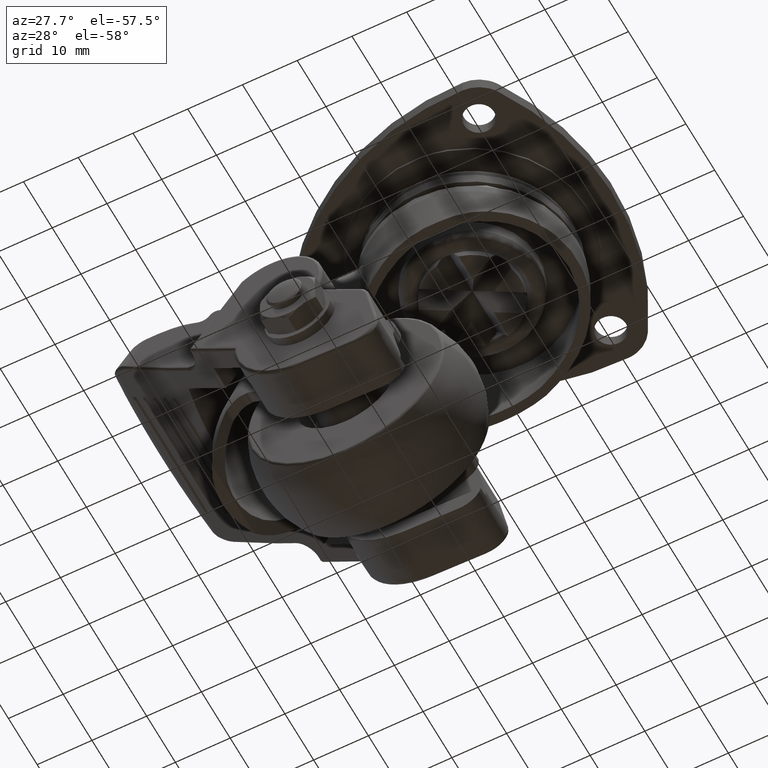
[diagram: clean part render]
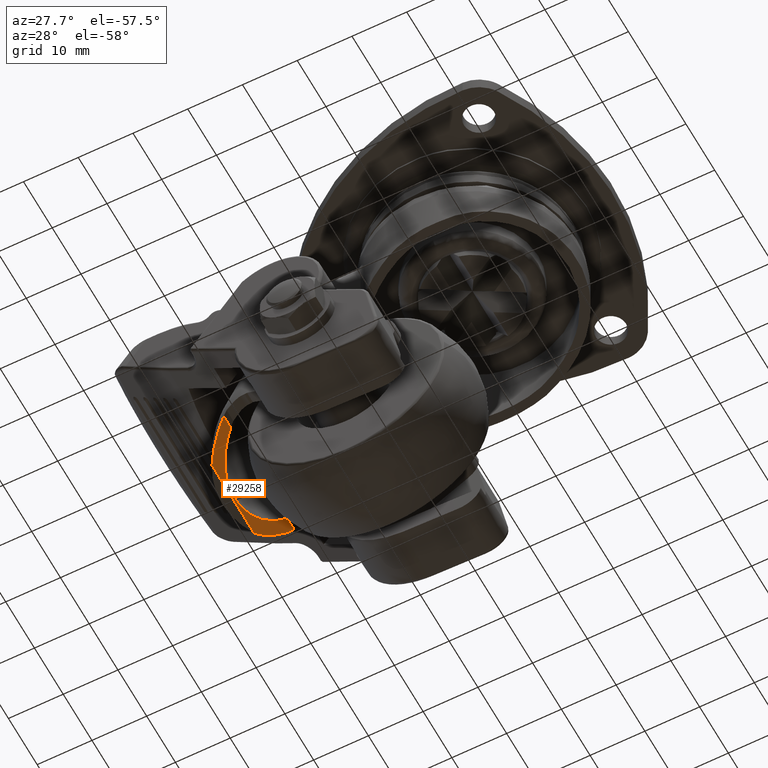
[diagram: same view with one face highlighted and labeled with its STEP entity id]
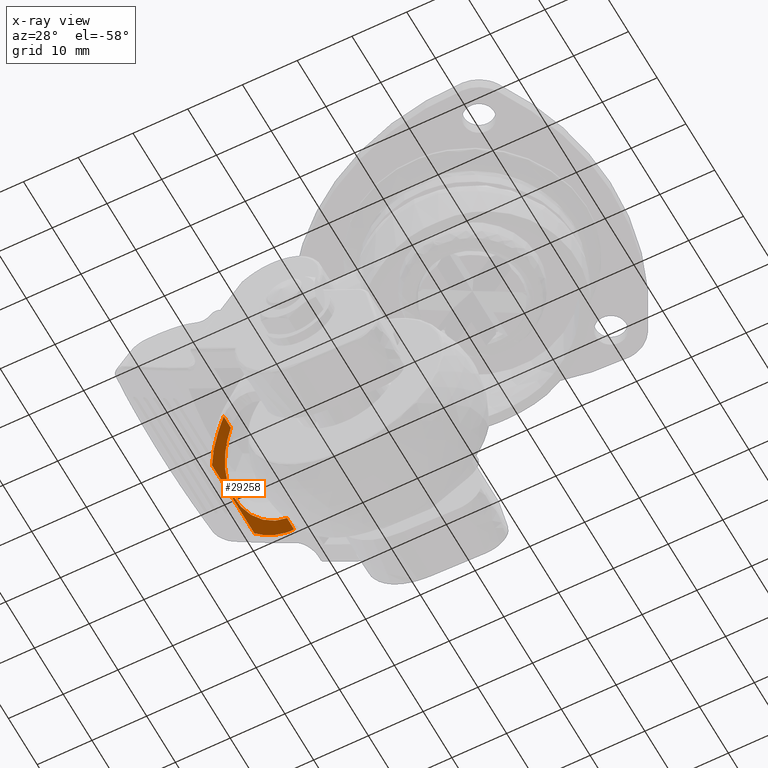
[diagram: x-ray of the same camera — body ghosted, the highlighted face saturated]
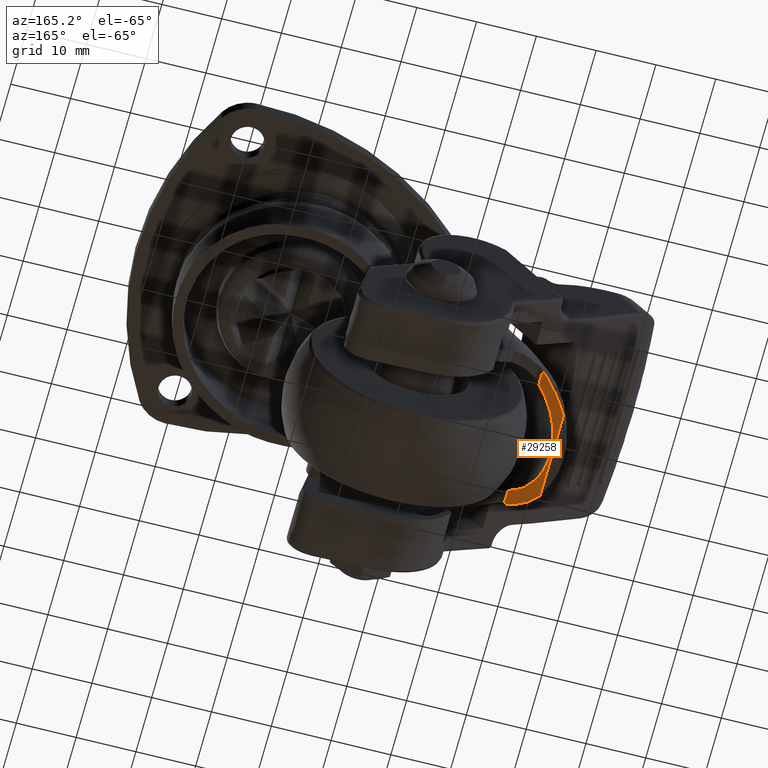
[diagram: same view with one face highlighted and labeled with its STEP entity id]
A machine part, auxiliary view. The second image highlights one B-rep face of the part: STEP entity #29258.
The next image is the same camera in x-ray: the body ghosted, the highlighted face saturated — about 0% of this face is hidden behind the body in this view.
A second angle (auxiliary view) of the same face is appended — the face is thin or edge-on in the first view.
In plain terms, the highlighted face is a freeform B-spline surface patch.
Its self-contained STEP definition (entity closure, byte-faithful):
#21800=CARTESIAN_POINT('',(-38.990632415442150,-9.787020269318219,-39.001695045220352));
#21801=VERTEX_POINT('',#21800);
#21811=CARTESIAN_POINT('',(-38.990630976671603,9.787021459366850,-39.001695959185149));
#21812=VERTEX_POINT('',#21811);
#21813=CARTESIAN_POINT('',(-38.990630976671603,9.787021459366850,-39.001695959185149));
#21814=CARTESIAN_POINT('',(-39.288993677966531,9.562006643564985,-39.355919401635319));
#21815=CARTESIAN_POINT('',(-39.583609206239743,9.311210438640156,-39.689070081056812));
#21816=CARTESIAN_POINT('',(-40.160260491850650,8.754972560939475,-40.315029654420663));
#21817=CARTESIAN_POINT('',(-40.442314747536592,8.449560925788552,-40.607849924627402));
#21818=CARTESIAN_POINT('',(-40.783548513886487,8.030974399839327,-40.949355357571051));
#21819=CARTESIAN_POINT('',(-40.851226488175890,7.945411582078039,-41.016428179176422));
#21820=CARTESIAN_POINT('',(-40.985347564712463,7.770506921104625,-41.148124163342047));
#21821=CARTESIAN_POINT('',(-41.051927173366039,7.680971755287967,-41.212878087348891));
#21822=CARTESIAN_POINT('',(-41.248427771846849,7.408282555905510,-41.402285793588021));
#21823=CARTESIAN_POINT('',(-41.375129631431307,7.221085885086739,-41.522121762224643));
#21824=CARTESIAN_POINT('',(-41.741784581498457,6.643514656175595,-41.863414714080093));
#21825=CARTESIAN_POINT('',(-41.968327098355161,6.237218012157707,-42.066734901682302));
#21826=CARTESIAN_POINT('',(-42.278517920884532,5.595828503154815,-42.338338510820762));
#21827=CARTESIAN_POINT('',(-42.376968863386352,5.376693809676836,-42.423290842407880));
#21828=CARTESIAN_POINT('',(-42.516773449211961,5.039831844461711,-42.542531512786361));
#21829=CARTESIAN_POINT('',(-42.562062138085572,4.926183444152608,-42.580912466219502));
#21830=CARTESIAN_POINT('',(-42.649926482853068,4.696124794978926,-42.654957044260001));
#21831=CARTESIAN_POINT('',(-42.692510309039157,4.579664154245539,-42.690626533065547));
#21832=CARTESIAN_POINT('',(-42.896771094144128,3.995277264738415,-42.860835427628693));
#21833=CARTESIAN_POINT('',(-43.034062784457078,3.517352537985829,-42.972388711513140));
#21834=CARTESIAN_POINT('',(-43.256124428224147,2.541449465855905,-43.150859046308632));
#21835=CARTESIAN_POINT('',(-43.340905382379937,2.043472500861859,-43.217770067142212));
#21836=CARTESIAN_POINT('',(-43.412390976105961,1.408175184641963,-43.273966938009622));
#21837=CARTESIAN_POINT('',(-43.424976487564557,1.280216576087910,-43.283839974339543));
#21838=CARTESIAN_POINT('',(-43.446502079105272,1.024438048815317,-43.300706400954383));
#21839=CARTESIAN_POINT('',(-43.455447497552129,0.896664021942407,-43.307704088448119));
#21840=CARTESIAN_POINT('',(-43.476902049783277,0.513682281884785,-43.324475531683532));
#21841=CARTESIAN_POINT('',(-43.484034965497287,0.258814443791981,-43.330035818415780));
#21842=CARTESIAN_POINT('',(-43.484278662286250,-0.504454425801323,-43.330225878569522));
#21843=CARTESIAN_POINT('',(-43.456316956866353,-1.011527898232405,-43.308490100568889));
#21844=CARTESIAN_POINT('',(-43.372073373449261,-1.769449775164073,-43.242275537882719));
#21845=CARTESIAN_POINT('',(-43.336921458814992,-2.021640589195433,-43.214571261848597));
#21846=CARTESIAN_POINT('',(-43.273378466315002,-2.399231570420937,-43.164164815028592));
#21847=CARTESIAN_POINT('',(-43.250447480143123,-2.524624434768511,-43.145927957021577));
#21848=CARTESIAN_POINT('',(-43.201359420648743,-2.773298891827075,-43.106753830216711));
#21849=CARTESIAN_POINT('',(-43.175172293642852,-2.896761925073797,-43.085792735761977));
#21850=CARTESIAN_POINT('',(-43.036182568029957,-3.509754695926981,-42.974109226266727));
#21851=CARTESIAN_POINT('',(-42.899305537422279,-3.986380655834871,-42.862890032348787));
#21852=CARTESIAN_POINT('',(-42.657432990640807,-4.680807921902177,-42.661422788633800));
#21853=CARTESIAN_POINT('',(-42.570698507010668,-4.908852531131845,-42.588466944878377));
#21854=CARTESIAN_POINT('',(-42.431533636830572,-5.245679609452610,-42.469853342979427));
#21855=CARTESIAN_POINT('',(-42.383633888967871,-5.357081235883142,-42.428783712096731));
#21856=CARTESIAN_POINT('',(-42.284817538373410,-5.578111506521057,-42.343478441474360));
#21857=CARTESIAN_POINT('',(-42.233790602035022,-5.687964449045004,-42.299145924312072));
#21858=CARTESIAN_POINT('',(-41.972657346841054,-6.229556584226855,-42.070628617639542));
#21859=CARTESIAN_POINT('',(-41.745111996104797,-6.637693031425621,-41.866421425246081));
#21860=CARTESIAN_POINT('',(-41.258113663921193,-7.405985274463511,-41.413285550832910));
#21861=CARTESIAN_POINT('',(-40.998633312842372,-7.766117373345595,-41.164347082343191));
#21862=CARTESIAN_POINT('',(-40.656970846196039,-8.186476705319631,-40.822734584419543));
#21863=CARTESIAN_POINT('',(-40.587771112800617,-8.269054390151451,-40.752885480653291));
#21864=CARTESIAN_POINT('',(-40.447698581193073,-8.431212098185984,-40.610053782201909));
#21865=CARTESIAN_POINT('',(-40.377036532001547,-8.510543390177034,-40.537284331404358));
#21866=CARTESIAN_POINT('',(-40.163964273763497,-8.742682167431546,-40.315568366273403));
#21867=CARTESIAN_POINT('',(-40.020199352419482,-8.889952083638297,-40.162940603212327));
#21868=CARTESIAN_POINT('',(-39.584821219891062,-9.310284397235941,-39.690480312099908));
#21869=CARTESIAN_POINT('',(-39.289136016345772,-9.561899147327074,-39.356085811793463));
#21870=CARTESIAN_POINT('',(-38.990632415442150,-9.787020269318219,-39.001695045220352));
#21871=B_SPLINE_CURVE_WITH_KNOTS('',3,(#21813,#21814,#21815,#21816,#21817,#21818,#21819,#21820,#21821,#21822,#21823,#21824,#21825,#21826,#21827,#21828,#21829,#21830,#21831,#21832,#21833,#21834,#21835,#21836,#21837,#21838,#21839,#21840,#21841,#21842,#21843,#21844,#21845,#21846,#21847,#21848,#21849,#21850,#21851,#21852,#21853,#21854,#21855,#21856,#21857,#21858,#21859,#21860,#21861,#21862,#21863,#21864,#21865,#21866,#21867,#21868,#21869,#21870),.UNSPECIFIED.,.F.,.U.,(4,2,2,2,2,2,2,2,2,2,2,2,2,2,2,2,2,2,2,2,2,2,2,2,2,2,2,2,4),(9.078716E-009,0.062499999999998,0.124999999999995,0.140624999999995,0.156249999999994,0.187499999999993,0.249999999999993,0.281249999999992,0.296874999999992,0.312499999999992,0.374999999999990,0.437499999999989,0.453124999999989,0.468749999999988,0.499999999999988,0.562499999999986,0.593749999999986,0.609374999999986,0.624999999999985,0.687499999999986,0.718749999999986,0.734374999999986,0.749999999999986,0.812499999999989,0.874999999999991,0.890624999999992,0.906249999999993,0.937499999999995,1.0),.UNSPECIFIED.);
#21872=EDGE_CURVE('',#21812,#21801,#21871,.T.);
#22602=CARTESIAN_POINT('',(-43.709543506826712,-7.366659395732890,-43.504274996629952));
#22603=VERTEX_POINT('',#22602);
#22620=CARTESIAN_POINT('',(-43.709543506826712,7.366659395732890,-43.504274996629952));
#22621=VERTEX_POINT('',#22620);
#22629=CARTESIAN_POINT('',(-43.709543506826712,7.366659395732890,-43.504274996629952));
#22630=CARTESIAN_POINT('',(-43.709543506826712,-7.366659395732890,-43.504274996629952));
#22631=QUASI_UNIFORM_CURVE('',1,(#22629,#22630),.UNSPECIFIED.,.F.,.U.);
#22632=EDGE_CURVE('',#22621,#22603,#22631,.T.);
#28518=CARTESIAN_POINT('',(-38.990632415452247,12.242027815838600,-39.001695045232353));
#28519=VERTEX_POINT('',#28518);
#28529=CARTESIAN_POINT('',(-43.709543506826712,7.366659395732890,-43.504274996629952));
#28530=CARTESIAN_POINT('',(-43.707017183980582,7.371031835306636,-43.502342272152369));
#28531=CARTESIAN_POINT('',(-43.705548539522603,7.376277017478562,-43.501218117187143));
#28532=CARTESIAN_POINT('',(-43.703018496050007,7.380645482363916,-43.499281276092113));
#28533=CARTESIAN_POINT('',(-43.700499883492647,7.384994210216173,-43.497353185782032));
#28534=CARTESIAN_POINT('',(-43.697982293110108,7.389336003876810,-43.495425245857000));
#28535=CARTESIAN_POINT('',(-43.695459984626901,7.393680768819083,-43.493493057226750));
#28536=CARTESIAN_POINT('',(-43.690417633871903,7.402366395074875,-43.489630415974339));
#28537=CARTESIAN_POINT('',(-43.685367783963727,7.411044293875376,-43.485759490625213));
#28538=CARTESIAN_POINT('',(-43.680310698081080,7.419714033291863,-43.481880456871522));
#28539=CARTESIAN_POINT('',(-43.670196921903347,7.437052833939558,-43.474122692799298));
#28540=CARTESIAN_POINT('',(-43.660054193360239,7.454359051905727,-43.466332491893368));
#28541=CARTESIAN_POINT('',(-43.649881839056867,7.471633990940010,-43.458509125024662));
#28542=CARTESIAN_POINT('',(-43.630397850795461,7.504722172822245,-43.443524355158338));
#28543=CARTESIAN_POINT('',(-43.608209925652837,7.542048478513291,-43.426414945507922));
#28544=CARTESIAN_POINT('',(-43.588504254813188,7.574889547544937,-43.411178553927002));
#28545=CARTESIAN_POINT('',(-43.547406188691369,7.643382746155469,-43.379401598260493));
#28546=CARTESIAN_POINT('',(-43.505702093597257,7.711598294886120,-43.346984788897799));
#28547=CARTESIAN_POINT('',(-43.463702255000499,7.779040216867512,-43.314155763271252));
#28548=CARTESIAN_POINT('',(-43.379605861401870,7.914079364766335,-43.248422113981412));
#28549=CARTESIAN_POINT('',(-43.293742375230963,8.046973515435173,-43.180584822907221));
#28550=CARTESIAN_POINT('',(-43.206223600607942,8.177642022079821,-43.110621311058281));
#28551=CARTESIAN_POINT('',(-43.031156697476149,8.439022861718719,-42.970670821527598));
#28552=CARTESIAN_POINT('',(-42.849639470649478,8.691240184181208,-42.822352778710602));
#28553=CARTESIAN_POINT('',(-42.662480557290962,8.933927178510214,-42.665416271305922));
#28554=CARTESIAN_POINT('',(-42.287753193970282,9.419832208974473,-42.351199851830032));
#28555=CARTESIAN_POINT('',(-41.892628859777894,9.864672848140362,-42.004293618126312));
#28556=CARTESIAN_POINT('',(-41.483582009672787,10.267909234255880,-41.623062264416284));
#28557=CARTESIAN_POINT('',(-40.972618718792731,10.771614349694900,-41.146844865288813));
#28558=CARTESIAN_POINT('',(-40.388879638315018,11.267507618907761,-40.565003735664099));
#28559=CARTESIAN_POINT('',(-39.868515641608383,11.656837079383450,-39.999999999999147));
#28560=CARTESIAN_POINT('',(-39.734067688061202,11.757428385236620,-39.854018347756814));
#28561=CARTESIAN_POINT('',(-39.564223670077709,11.877278290728849,-39.663905686200479));
#28562=CARTESIAN_POINT('',(-39.429573766220322,11.966907491494370,-39.511126382697007));
#28563=CARTESIAN_POINT('',(-39.282959262956027,12.064500882739029,-39.344771553985467));
#28564=CARTESIAN_POINT('',(-39.136562107657710,12.156104998807781,-39.174946325354682));
#28565=CARTESIAN_POINT('',(-38.990632415452247,12.242027815838600,-39.001695045232353));
#28566=B_SPLINE_CURVE_WITH_KNOTS('',3,(#28529,#28530,#28531,#28532,#28533,#28534,#28535,#28536,#28537,#28538,#28539,#28540,#28541,#28542,#28543,#28544,#28545,#28546,#28547,#28548,#28549,#28550,#28551,#28552,#28553,#28554,#28555,#28556,#28557,#28558,#28559,#28560,#28561,#28562,#28563,#28564,#28565),.UNSPECIFIED.,.F.,.U.,(4,3,3,3,3,3,3,3,3,3,3,3,4),(0.0,0.016221085959220,0.032368883905641,0.064649971531825,0.129209621615044,0.252866292122976,0.510764135961586,1.027153705738670,2.060106042878052,4.128270998456177,6.711731478627248,7.379226461649016,8.106033110325013),.UNSPECIFIED.);
#28567=EDGE_CURVE('',#22621,#28519,#28566,.T.);
#28572=CARTESIAN_POINT('',(-38.990632415452247,-12.242027815838600,-39.001695045232353));
#28573=VERTEX_POINT('',#28572);
#28574=CARTESIAN_POINT('',(-38.990632415452247,-12.242027815838600,-39.001695045232353));
#28575=CARTESIAN_POINT('',(-39.249908486916830,-12.089369083187581,-39.309533257904178));
#28576=CARTESIAN_POINT('',(-39.563259865757871,-11.884419656424811,-39.666383897202302));
#28577=CARTESIAN_POINT('',(-40.317594606570502,-11.322218839415900,-40.487040673852263));
#28578=CARTESIAN_POINT('',(-40.892071118998459,-10.837565210022371,-41.066745357141272));
#28579=CARTESIAN_POINT('',(-41.662761302728264,-10.097835054254171,-41.792576089978972));
#28580=CARTESIAN_POINT('',(-42.464949518021150,-9.238090298529603,-42.513574670857793));
#28581=CARTESIAN_POINT('',(-43.131164793688448,-8.324235603394614,-43.055801322976762));
#28582=CARTESIAN_POINT('',(-43.547200744786139,-7.643380843566268,-43.379195823246953));
#28583=CARTESIAN_POINT('',(-43.609608276427387,-7.541189544933968,-43.427574672623308));
#28584=CARTESIAN_POINT('',(-43.670006497847510,-7.436903999434558,-43.474033142447752));
#28585=CARTESIAN_POINT('',(-43.709543506826712,-7.366659395732890,-43.504274996629952));
#28586=B_SPLINE_CURVE_WITH_KNOTS('',3,(#28574,#28575,#28576,#28577,#28578,#28579,#28580,#28581,#28582,#28583,#28584,#28585),.UNSPECIFIED.,.F.,.U.,(4,1,1,1,1,1,2,1,4),(0.000020779462030,1.291427393545900,1.549708534070614,3.745100603689845,4.132522546724654,5.423928711341928,7.877599127846700,8.006740717402572,8.265022685480261),.UNSPECIFIED.);
#28587=EDGE_CURVE('',#28573,#22603,#28586,.T.);
#29203=CARTESIAN_POINT('',(-38.990632415442150,-9.787020269318219,-39.001695045220352));
#29204=CARTESIAN_POINT('',(-38.990632415452247,-12.242027815838600,-39.001695045232353));
#29205=QUASI_UNIFORM_CURVE('',1,(#29203,#29204),.UNSPECIFIED.,.F.,.U.);
#29206=EDGE_CURVE('',#21801,#28573,#29205,.T.);
#29226=CARTESIAN_POINT('',(-38.990632415452247,12.242027815838600,-39.001695045232353));
#29227=CARTESIAN_POINT('',(-38.990630976671603,9.787021459366850,-39.001695959185149));
#29228=QUASI_UNIFORM_CURVE('',1,(#29226,#29227),.UNSPECIFIED.,.F.,.U.);
#29229=EDGE_CURVE('',#28519,#21812,#29228,.T.);
#29236=CARTESIAN_POINT('',(-38.782221923353063,12.854129206630533,-38.751524081145512));
#29237=CARTESIAN_POINT('',(-38.782221923353063,-12.869431741400325,-38.751524081145512));
#29238=CARTESIAN_POINT('',(-41.078159521598110,12.854129206630528,-41.538103851431963));
#29239=CARTESIAN_POINT('',(-41.078159521598110,-12.869431741400328,-41.538103851431963));
#29240=CARTESIAN_POINT('',(-43.969349817693420,12.854129206630532,-43.700827815087358));
#29241=CARTESIAN_POINT('',(-43.969349817693420,-12.869431741400332,-43.700827815087358));
#29249=(BOUNDED_SURFACE()B_SPLINE_SURFACE(1,2,((#29236,#29238,#29240),(#29237,#29239,#29241)),.UNSPECIFIED.,.F.,.F.,.U.)B_SPLINE_SURFACE_WITH_KNOTS((2,2),(3,3),(0.0,25.723560948030858),(0.0,7.195252608672478),.UNSPECIFIED.)GEOMETRIC_REPRESENTATION_ITEM()RATIONAL_B_SPLINE_SURFACE(((0.997692460482266,0.990281225721257,0.997142927263545),(0.997692460482266,0.990281225721257,0.997142927263545)))REPRESENTATION_ITEM('')SURFACE());
#29250=ORIENTED_EDGE('',*,*,#29229,.T.);
#29251=ORIENTED_EDGE('',*,*,#21872,.T.);
#29252=ORIENTED_EDGE('',*,*,#29206,.T.);
#29253=ORIENTED_EDGE('',*,*,#28587,.T.);
#29254=ORIENTED_EDGE('',*,*,#22632,.F.);
#29255=ORIENTED_EDGE('',*,*,#28567,.T.);
#29256=EDGE_LOOP('',(#29250,#29251,#29252,#29253,#29254,#29255));
#29257=FACE_OUTER_BOUND('',#29256,.T.);
#29258=ADVANCED_FACE('',(#29257),#29249,.T.);